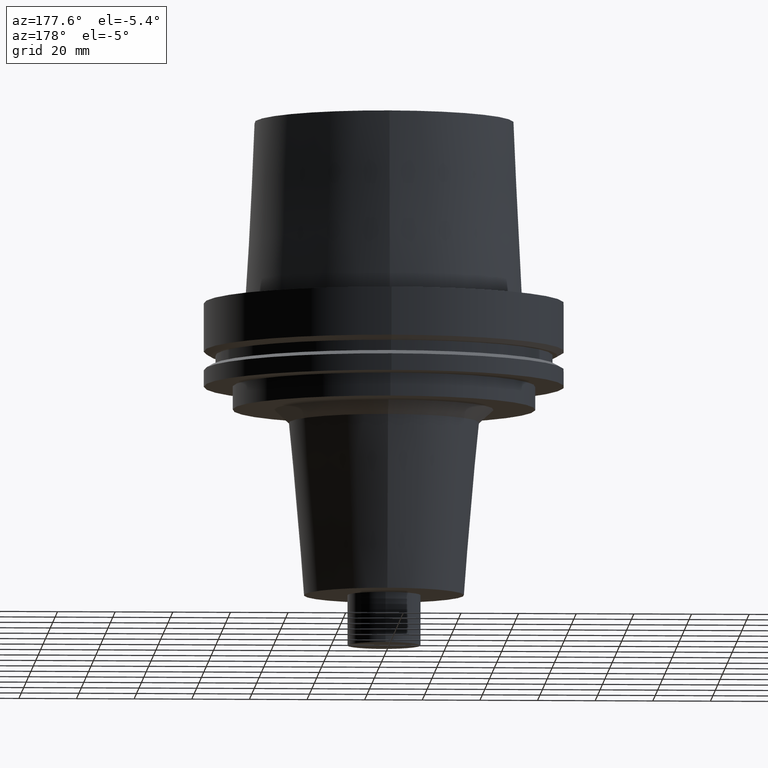
[diagram: clean part render]
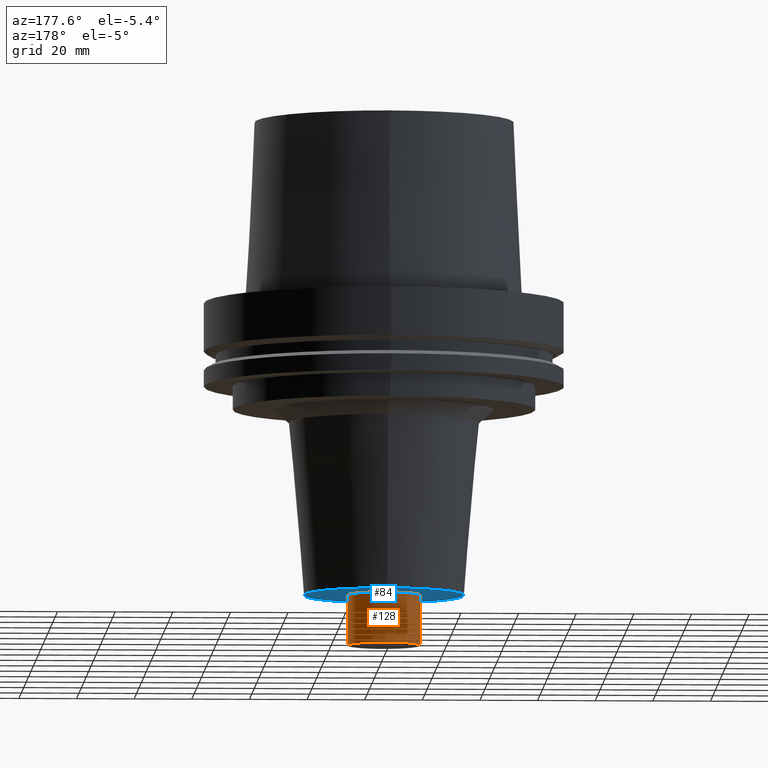
[diagram: same view with the hole feature highlighted: cylindrical wall and planar end face, labeled with their STEP entity ids]
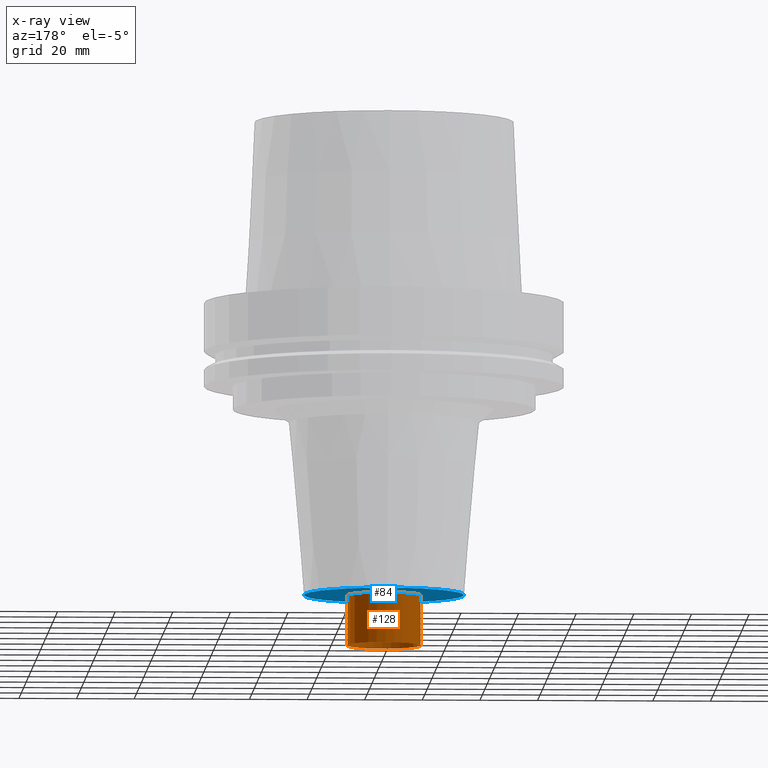
[diagram: x-ray of the same camera — body ghosted, the hole faces saturated]
A machine part, auxiliary view. The highlighted faces form one hole feature of diameter 25.4 mm: the cylindrical wall (entity #128, orange) and its adjacent planar end face (entity #84, blue) — they share a circular edge in the B-rep.
The next image is the same camera in x-ray (body ghosted, the hole faces saturated) — the bore reads through the body.
Wall:
#88=EDGE_CURVE('Unnamed[1]',#212,#212,#213,.T.);
#125=EDGE_CURVE('Unnamed[1]',#267,#267,#268,.T.);
#128=ADVANCED_FACE('Unnamed[1]',(#271,#272),#273,.T.);
#212=VERTEX_POINT('',#372);
#213=CIRCLE('',#373,12.7000000000002);
#267=VERTEX_POINT('',#441);
#268=CIRCLE('',#442,12.6999999999999);
#271=FACE_BOUND('',#446,.T.);
#272=FACE_BOUND('',#447,.T.);
#273=CYLINDRICAL_SURFACE('',#448,12.7);
#372=CARTESIAN_POINT('',(6.22120573966838E-015,12.7000000000002,-101.599999999997));
#373=AXIS2_PLACEMENT_3D('',#543,#544,#545);
#441=CARTESIAN_POINT('',(7.29277168892233E-015,12.6999999999999,-119.099999999997));
#442=AXIS2_PLACEMENT_3D('',#602,#603,#604);
#446=EDGE_LOOP('',(#606));
#447=EDGE_LOOP('',(#607));
#448=AXIS2_PLACEMENT_3D('',#608,#609,#610);
#543=CARTESIAN_POINT('',(6.22120573966838E-015,1.24424114793368E-014,-101.599999999997));
#544=DIRECTION('',(6.12323399573677E-017,1.22464679914735E-016,-1.0));
#545=DIRECTION('',(-1.23259516440783E-032,1.0,1.22464679914735E-016));
#602=CARTESIAN_POINT('',(7.29277168892233E-015,1.45855433778447E-014,-119.099999999997));
#603=DIRECTION('',(6.12323399573677E-017,1.22464679914735E-016,-1.0));
#604=DIRECTION('',(-1.23259516440783E-032,1.0,1.22464679914735E-016));
#606=ORIENTED_EDGE('',*,*,#125,.F.);
#607=ORIENTED_EDGE('',*,*,#88,.T.);
#608=CARTESIAN_POINT('',(6.75698871429535E-015,1.35139774285907E-014,-110.349999999997));
#609=DIRECTION('',(6.12323399573677E-017,1.22464679914735E-016,-1.0));
#610=DIRECTION('',(-1.23259516440783E-032,1.0,1.22464679914735E-016));
End face:
#84=ADVANCED_FACE('Unnamed[1]',(#205,#206),#207,.T.);
#88=EDGE_CURVE('Unnamed[1]',#212,#212,#213,.T.);
#101=EDGE_CURVE('Unnamed[1]',#232,#232,#233,.T.);
#205=FACE_BOUND('',#363,.T.);
#206=FACE_OUTER_BOUND('',#364,.T.);
#207=PLANE('',#365);
#212=VERTEX_POINT('',#372);
#213=CIRCLE('',#373,12.7000000000002);
#232=VERTEX_POINT('',#398);
#233=CIRCLE('',#399,27.8000000000002);
#363=EDGE_LOOP('',(#535));
#364=EDGE_LOOP('',(#536));
#365=AXIS2_PLACEMENT_3D('',#537,#538,#539);
#372=CARTESIAN_POINT('',(6.22120573966838E-015,12.7000000000002,-101.599999999997));
#373=AXIS2_PLACEMENT_3D('',#543,#544,#545);
#398=CARTESIAN_POINT('',(6.22120573966833E-015,27.8000000000002,-101.599999999996));
#399=AXIS2_PLACEMENT_3D('',#564,#565,#566);
#535=ORIENTED_EDGE('',*,*,#88,.F.);
#536=ORIENTED_EDGE('',*,*,#101,.T.);
#537=CARTESIAN_POINT('',(6.22120573966836E-015,20.2500000000002,-101.599999999997));
#538=DIRECTION('',(6.12323399573677E-017,4.62371587888483E-014,-1.0));
#539=DIRECTION('',(-2.83603657835232E-030,1.0,4.62371587888483E-014));
#543=CARTESIAN_POINT('',(6.22120573966838E-015,1.24424114793368E-014,-101.599999999997));
#544=DIRECTION('',(6.12323399573677E-017,1.22464679914735E-016,-1.0));
#545=DIRECTION('',(-1.23259516440783E-032,1.0,1.22464679914735E-016));
#564=CARTESIAN_POINT('',(6.22120573966833E-015,1.24424114793367E-014,-101.599999999996));
#565=DIRECTION('',(6.12323399573677E-017,1.22464679914735E-016,-1.0));
#566=DIRECTION('',(-1.23259516440783E-032,1.0,1.22464679914735E-016));